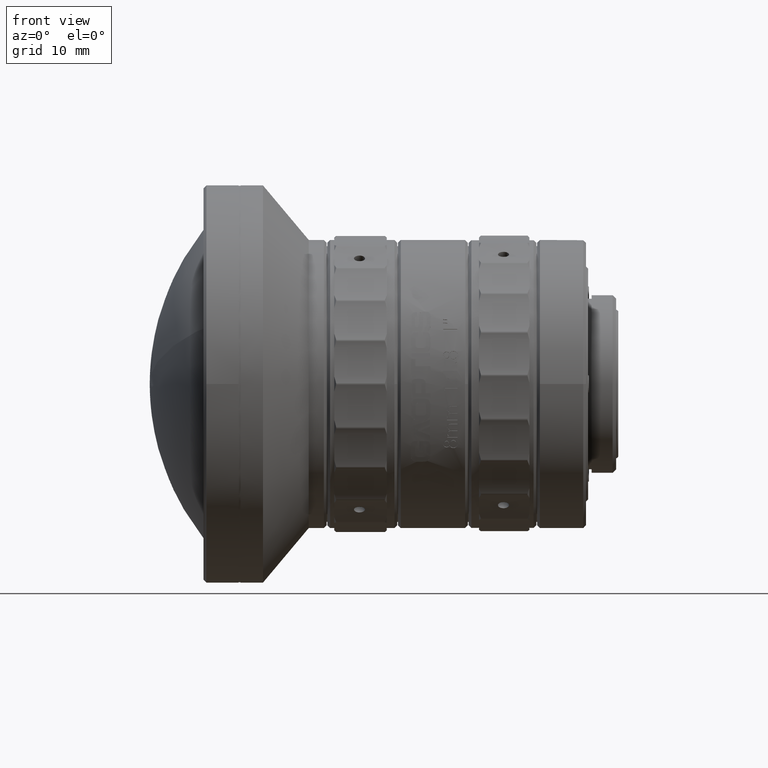
[diagram: clean part render]
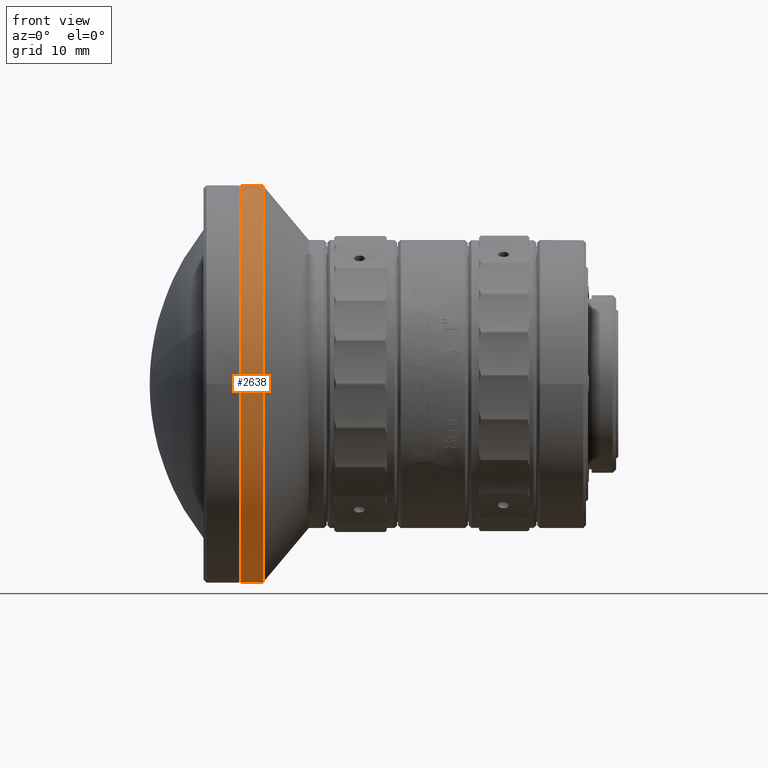
[diagram: same view with one face highlighted and labeled with its STEP entity id]
A machine part, front view. The second image highlights one B-rep face of the part: STEP entity #2638.
In plain terms, the highlighted face is a freeform B-spline surface patch.
Its self-contained STEP definition (entity closure, byte-faithful):
#2638 = ADVANCED_FACE ( 'NONE', ( #76410 ), #38669, .F. ) ;
#3299 = CARTESIAN_POINT ( 'NONE',  ( 2.339999999999999858, -22.58022630462717473, -17.32495266883629981 ) ) ;
#3682 = CARTESIAN_POINT ( 'NONE',  ( 2.340000000000000302, -22.58022630462720315, 17.32495259219414763 ) ) ;
#4076 = CARTESIAN_POINT ( 'NONE',  ( 2.339999999999999858, -21.39724213906989903, 18.76642304399569738 ) ) ;
#4463 = CARTESIAN_POINT ( 'NONE',  ( 2.340000000000000302, -26.95007326265174541, -9.149544047025065296 ) ) ;
#5211 = CARTESIAN_POINT ( 'NONE',  ( 5.540000000000000036, -5.100252870484915822E-09, 28.40000000000000213 ) ) ;
#7221 = B_SPLINE_CURVE_WITH_KNOTS ( 'NONE', 1,
 ( #57267, #27566 ),
 .UNSPECIFIED., .F., .F.,
 ( 2, 2 ),
 ( -1.000000000000000000, 0.000000000000000000 ),
 .UNSPECIFIED. ) ;
#7872 = VERTEX_POINT ( 'NONE', #44296 ) ;
#9158 = CARTESIAN_POINT ( 'NONE',  ( 2.339999999999999414, -12.58687490238933648, -25.52628422765226901 ) ) ;
#9545 = CARTESIAN_POINT ( 'NONE',  ( 2.339999999999999858, -25.52628422765224414, 12.58687490238938445 ) ) ;
#9557 = CARTESIAN_POINT ( 'NONE',  ( 5.540000000000000036, -1.164987473967079952E-08, -28.40000000000000213 ) ) ;
#9935 = CARTESIAN_POINT ( 'NONE',  ( 2.339999999999999414, -9.149544047025061744, -26.95007326265172765 ) ) ;
#10327 = CARTESIAN_POINT ( 'NONE',  ( 2.339999999999999414, -21.39724213906987771, -18.76642304399571515 ) ) ;
#10592 = CARTESIAN_POINT ( 'NONE',  ( 5.540000000000000036, -56.79999997814962853, -28.39999997670027909 ) ) ;
#10717 = CARTESIAN_POINT ( 'NONE',  ( 2.340000000000000302, -17.32495259219414407, -22.58022630462719249 ) ) ;
#14961 = VERTEX_POINT ( 'NONE', #47438 ) ;
#15526 = VERTEX_POINT ( 'NONE', #20515 ) ;
#16544 = CARTESIAN_POINT ( 'NONE',  ( 5.540000000000000924, -56.79999997160000191, 28.39999998979950036 ) ) ;
#20515 = CARTESIAN_POINT ( 'NONE',  ( 5.540000000000000036, -1.164987473967079952E-08, -28.40000000000000213 ) ) ;
#21661 = CARTESIAN_POINT ( 'NONE',  ( 2.340000000000000746, -14.23143658419412994, 24.64724762607360731 ) ) ;
#22440 = CARTESIAN_POINT ( 'NONE',  ( 2.339999999999999858, -28.39999998591359898, -1.860270046365844365 ) ) ;
#22830 = CARTESIAN_POINT ( 'NONE',  ( 2.339999999999999858, -7.365090602413950194, 27.49138132195838935 ) ) ;
#22972 =( BOUNDED_CURVE ( )  B_SPLINE_CURVE ( 3, ( #39882, #10592, #28555, #76315 ),
 .UNSPECIFIED., .F., .F. ) 
 B_SPLINE_CURVE_WITH_KNOTS ( ( 4, 4 ),
 ( -3.141592653589795336, 0.000000000000000000 ),
 .UNSPECIFIED. ) 
 CURVE ( )  GEOMETRIC_REPRESENTATION_ITEM ( )  RATIONAL_B_SPLINE_CURVE ( ( 1.000000000000000000, 0.3333333335299309419, 0.3333333335299309419, 1.000000000000000000 ) ) 
 REPRESENTATION_ITEM ( '' )  );
#23977 = CARTESIAN_POINT ( 'NONE',  ( 2.340000000000000302, -12.58687490238938977, 25.52628422765225835 ) ) ;
#24237 = VERTEX_POINT ( 'NONE', #67475 ) ;
#26173 = EDGE_LOOP ( 'NONE', ( #55847, #44387, #67685, #64117 ) ) ;
#27123 = CARTESIAN_POINT ( 'NONE',  ( 2.340000000000000302, -24.64724762607362152, -14.23143658419410151 ) ) ;
#27511 = CARTESIAN_POINT ( 'NONE',  ( 2.339999999999998970, -18.76642304399569738, 21.39724213906989547 ) ) ;
#27566 = CARTESIAN_POINT ( 'NONE',  ( 5.540000000000000036, -2.550126435242459979E-09, 28.40000000000000213 ) ) ;
#28289 = CARTESIAN_POINT ( 'NONE',  ( 2.339999999999999858, -7.766583159780540184E-09, -28.39999999530455099 ) ) ;
#28555 = CARTESIAN_POINT ( 'NONE',  ( 5.540000000000000036, -56.79999997160001612, 28.39999998979949325 ) ) ;
#29038 = CARTESIAN_POINT ( 'NONE',  ( 2.339999999999999858, -56.79999997160000191, 28.39999998979950036 ) ) ;
#29100 = B_SPLINE_CURVE_WITH_KNOTS ( 'NONE', 3,
 ( #28289, #38842, #63485, #32991, #9935, #9158, #45111, #10717, #56840, #10327, #3299, #27123, #40407, #4463, #68968, #76042, #22440, #50984, #69748, #46293, #74873, #9545, #57216, #3682, #4076, #27511, #75262, #21661, #23977, #47824, #22830, #35701, #29446, #58772 ),
 .UNSPECIFIED., .F., .F.,
 ( 4, 2, 2, 2, 2, 2, 2, 2, 2, 2, 2, 2, 2, 2, 2, 2, 4 ),
 ( 0.000000000000000000, 0.1963495408493623751, 0.3926990816987247501, 0.5890486225480870974, 0.7853981633974493892, 0.9817477042468115700, 1.178097245096173529, 1.374446785945535598, 1.570796326794897668, 1.767145867644259516, 1.963495408493621808, 2.159844949342983433, 2.356194490192345725, 2.552544031041708017, 2.748893571891070753, 2.945243112740432601, 3.141592653589795336 ),
 .UNSPECIFIED. ) ;
#29446 = CARTESIAN_POINT ( 'NONE',  ( 2.340000000000000746, -1.860270046365786634, 28.39999998591360963 ) ) ;
#32991 = CARTESIAN_POINT ( 'NONE',  ( 2.339999999999999858, -7.365090602413873810, -27.49138124531626559 ) ) ;
#34502 = CARTESIAN_POINT ( 'NONE',  ( 2.339999999999999858, -5.100252870484915822E-09, 28.40000000000000213 ) ) ;
#35701 = CARTESIAN_POINT ( 'NONE',  ( 2.340000000000000746, -3.716039685822849492, 28.21722263838722355 ) ) ;
#38669 =( BOUNDED_SURFACE ( )  B_SPLINE_SURFACE ( 1, 3, ( 
 ( #52123, #76013, #16544, #5211 ),
 ( #64227, #47416, #29038, #34502 ) ),
 .UNSPECIFIED., .F., .F., .T. ) 
 B_SPLINE_SURFACE_WITH_KNOTS ( ( 2, 2 ),
 ( 4, 4 ),
 ( 0.000000000000000000, 1.000000000000000000 ),
 ( 0.000000000000000000, 1.000000000000000000 ),
 .UNSPECIFIED. ) 
 GEOMETRIC_REPRESENTATION_ITEM ( )  RATIONAL_B_SPLINE_SURFACE ( (
 ( 1.000000000000000000, 0.3333333335299311084, 0.3333333335299311084, 1.000000000000000000),
 ( 1.000000000000000000, 0.3333333335299311084, 0.3333333335299311084, 1.000000000000000000) ) ) 
 REPRESENTATION_ITEM ( '' )  SURFACE ( )  );
#38842 = CARTESIAN_POINT ( 'NONE',  ( 2.340000000000000746, -1.860270046365870567, -28.39999998591360963 ) ) ;
#39882 = CARTESIAN_POINT ( 'NONE',  ( 5.540000000000000036, -1.164987473967079952E-08, -28.40000000000000213 ) ) ;
#40152 = EDGE_CURVE ( 'NONE', #7872, #14961, #7221, .T. ) ;
#40407 = CARTESIAN_POINT ( 'NONE',  ( 2.339999999999999858, -25.52628422765226901, -12.58687490238934359 ) ) ;
#44296 = CARTESIAN_POINT ( 'NONE',  ( 2.339999999999999858, -1.700084290161640055E-09, 28.39999999530455099 ) ) ;
#44387 = ORIENTED_EDGE ( 'NONE', *, *, #40152, .F. ) ;
#45111 = CARTESIAN_POINT ( 'NONE',  ( 2.339999999999999858, -14.23143666083626080, -24.64724762607360731 ) ) ;
#46293 = CARTESIAN_POINT ( 'NONE',  ( 2.340000000000000302, -27.49138124531625849, 7.365090602413884469 ) ) ;
#46536 = EDGE_CURVE ( 'NONE', #15526, #24237, #68857, .T. ) ;
#47416 = CARTESIAN_POINT ( 'NONE',  ( 2.339999999999999858, -56.79999997814962143, -28.39999997670025067 ) ) ;
#47438 = CARTESIAN_POINT ( 'NONE',  ( 5.540000000000000036, -2.550126435242459979E-09, 28.40000000000000213 ) ) ;
#47824 = CARTESIAN_POINT ( 'NONE',  ( 2.340000000000000302, -9.149544047025022664, 26.95007326265175962 ) ) ;
#50984 = CARTESIAN_POINT ( 'NONE',  ( 2.339999999999999414, -28.39999998591359187, 1.860270046365842811 ) ) ;
#52123 = CARTESIAN_POINT ( 'NONE',  ( 5.540000000000000036, -1.164987473967080945E-08, -28.40000000000000213 ) ) ;
#52160 = CARTESIAN_POINT ( 'NONE',  ( 2.339999999999999858, -7.766583159780540184E-09, -28.39999999530455099 ) ) ;
#55823 = EDGE_CURVE ( 'NONE', #15526, #14961, #22972, .T. ) ;
#55847 = ORIENTED_EDGE ( 'NONE', *, *, #55823, .T. ) ;
#56840 = CARTESIAN_POINT ( 'NONE',  ( 2.339999999999999858, -18.76642304399572225, -21.39724213906987771 ) ) ;
#57216 = CARTESIAN_POINT ( 'NONE',  ( 2.339999999999999414, -24.64724762607360020, 14.23143666083626080 ) ) ;
#57267 = CARTESIAN_POINT ( 'NONE',  ( 2.339999999999999858, -1.700084290161640055E-09, 28.39999999530455099 ) ) ;
#58772 = CARTESIAN_POINT ( 'NONE',  ( 2.339999999999999858, -1.700084290161640055E-09, 28.39999999530455099 ) ) ;
#63485 = CARTESIAN_POINT ( 'NONE',  ( 2.339999999999999858, -3.716039685822928984, -28.21722271502933665 ) ) ;
#64117 = ORIENTED_EDGE ( 'NONE', *, *, #46536, .F. ) ;
#64227 = CARTESIAN_POINT ( 'NONE',  ( 2.339999999999999858, -1.164987473967080945E-08, -28.40000000000000213 ) ) ;
#67475 = CARTESIAN_POINT ( 'NONE',  ( 2.339999999999999858, -7.766583159780540184E-09, -28.39999999530455099 ) ) ;
#67685 = ORIENTED_EDGE ( 'NONE', *, *, #74178, .F. ) ;
#68857 = B_SPLINE_CURVE_WITH_KNOTS ( 'NONE', 1,
 ( #9557, #52160 ),
 .UNSPECIFIED., .F., .F.,
 ( 2, 2 ),
 ( -1.000000000000000000, 0.000000000000000000 ),
 .UNSPECIFIED. ) ;
#68968 = CARTESIAN_POINT ( 'NONE',  ( 2.339999999999999858, -27.49138132195839646, -7.365090602413878251 ) ) ;
#69748 = CARTESIAN_POINT ( 'NONE',  ( 2.339999999999999414, -28.21722271502932600, 3.716039685822916105 ) ) ;
#74178 = EDGE_CURVE ( 'NONE', #24237, #7872, #29100, .T. ) ;
#74873 = CARTESIAN_POINT ( 'NONE',  ( 2.339999999999999858, -26.95007326265175962, 9.149544047025003124 ) ) ;
#75262 = CARTESIAN_POINT ( 'NONE',  ( 2.339999999999999858, -17.32495266883626783, 22.58022630462720670 ) ) ;
#76013 = CARTESIAN_POINT ( 'NONE',  ( 5.540000000000000924, -56.79999997814962143, -28.39999997670025067 ) ) ;
#76042 = CARTESIAN_POINT ( 'NONE',  ( 2.340000000000000746, -28.21722263838720579, -3.716039685822924543 ) ) ;
#76315 = CARTESIAN_POINT ( 'NONE',  ( 5.540000000000000036, -2.550126435242459979E-09, 28.40000000000000213 ) ) ;
#76410 = FACE_OUTER_BOUND ( 'NONE', #26173, .T. ) ;